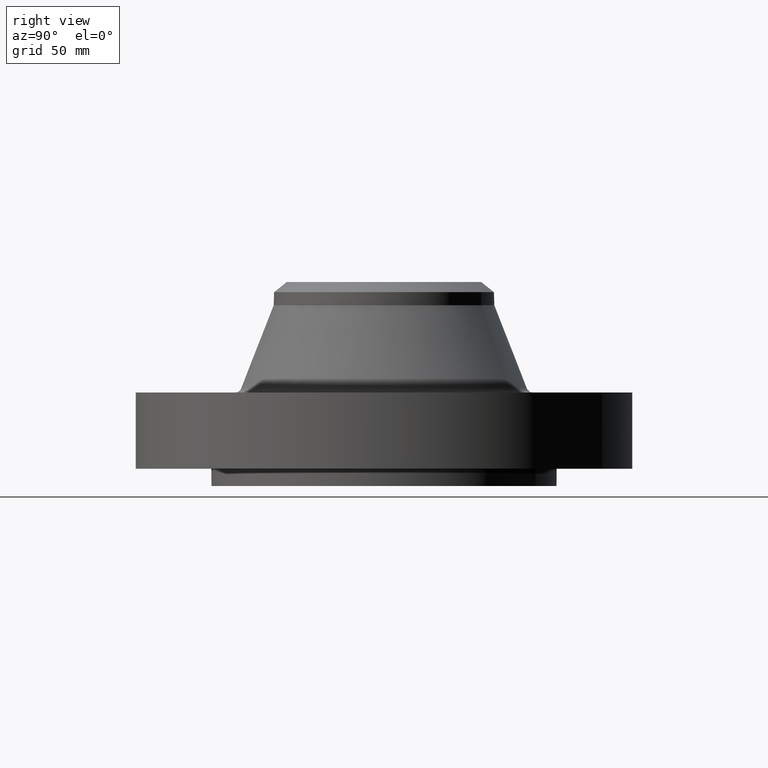
[diagram: clean part render]
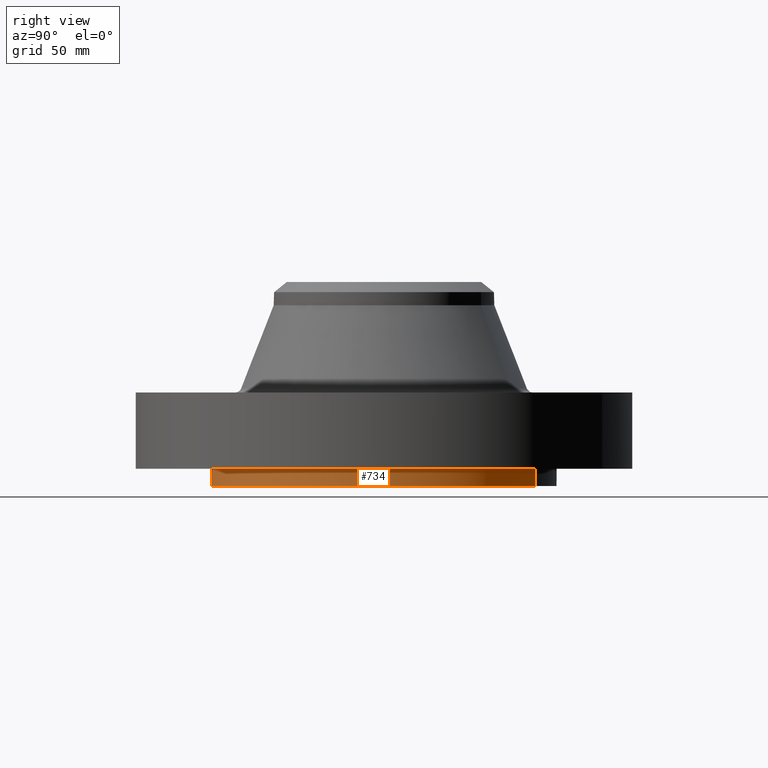
[diagram: same view with one face highlighted and labeled with its STEP entity id]
A machine part, right view. The second image highlights one B-rep face of the part: STEP entity #734.
In plain terms, the highlighted cylindrical surface (partial cylindrical patch) has radius 79.375 mm, axis along (0, 0, -1).
Its self-contained STEP definition (entity closure, byte-faithful):
#184=AXIS2_PLACEMENT_3D('Circle Axis2P3D',#182,#183,$) ;
#210=AXIS2_PLACEMENT_3D('Circle Axis2P3D',#208,#209,$) ;
#307=AXIS2_PLACEMENT_3D('Circle Axis2P3D',#305,#306,$) ;
#333=AXIS2_PLACEMENT_3D('Circle Axis2P3D',#331,#332,$) ;
#359=AXIS2_PLACEMENT_3D('Circle Axis2P3D',#357,#358,$) ;
#703=AXIS2_PLACEMENT_3D('Cylinder Axis2P3D',#700,#701,#702) ;
#707=AXIS2_PLACEMENT_3D('Circle Axis2P3D',#705,#706,$) ;
#167=CARTESIAN_POINT('Vertex',(3.12500000001,0.,2.61916123086E-011)) ;
#182=CARTESIAN_POINT('Axis2P3D Location',(-5.19380444165E-010,-1.61115845075E-010,0.)) ;
#186=CARTESIAN_POINT('Vertex',(2.20970869122,2.20970869122,2.61916123086E-011)) ;
#208=CARTESIAN_POINT('Axis2P3D Location',(1.65718427607E-010,1.1475824665E-010,0.)) ;
#212=CARTESIAN_POINT('Vertex',(1.49820480814,2.74244550592,2.61916123086E-011)) ;
#302=CARTESIAN_POINT('Vertex',(-1.49820480814,-2.74244550592,2.61916123086E-011)) ;
#305=CARTESIAN_POINT('Axis2P3D Location',(-2.03877160124E-010,-6.96518188707E-010,0.)) ;
#309=CARTESIAN_POINT('Vertex',(2.79741234551E-016,-3.12500000001,2.61916123086E-011)) ;
#331=CARTESIAN_POINT('Axis2P3D Location',(1.69489898931E-010,-2.92913130321E-010,0.)) ;
#335=CARTESIAN_POINT('Vertex',(2.20970869122,-2.20970869122,2.61916123086E-011)) ;
#357=CARTESIAN_POINT('Axis2P3D Location',(-5.193793252E-010,1.81115105415E-010,0.)) ;
#700=CARTESIAN_POINT('Axis2P3D Location',(0.,0.,1.53350000001)) ;
#705=CARTESIAN_POINT('Axis2P3D Location',(0.,0.,-0.313000000004)) ;
#709=CARTESIAN_POINT('Vertex',(1.49820480814,2.74244550592,-0.313000000004)) ;
#711=CARTESIAN_POINT('Vertex',(-1.49820480814,-2.74244550592,-0.313000000001)) ;
#714=CARTESIAN_POINT('Line Origine',(1.49820480814,2.74244550592,-0.156499999989)) ;
#719=CARTESIAN_POINT('Line Origine',(-1.49820480814,-2.74244550592,-0.156499999989)) ;
#183=DIRECTION('Axis2P3D Direction',(0.,0.,-0.0393700787402)) ;
#209=DIRECTION('Axis2P3D Direction',(0.,0.,-0.0393700787402)) ;
#306=DIRECTION('Axis2P3D Direction',(0.,0.,-0.0393700787402)) ;
#332=DIRECTION('Axis2P3D Direction',(0.,0.,-0.0393700787402)) ;
#358=DIRECTION('Axis2P3D Direction',(0.,0.,-0.0393700787402)) ;
#701=DIRECTION('Axis2P3D Direction',(0.,0.,-0.0393700787402)) ;
#702=DIRECTION('Axis2P3D XDirection',(0.0188750212048,0.0345504945626,0.)) ;
#706=DIRECTION('Axis2P3D Direction',(0.,0.,-0.0393700787402)) ;
#715=DIRECTION('Vector Direction',(0.,0.,-0.0393700787402)) ;
#720=DIRECTION('Vector Direction',(0.,0.,-0.0393700787402)) ;
#716=VECTOR('Line Direction',#715,0.0393700787402) ;
#721=VECTOR('Line Direction',#720,0.0393700787402) ;
#725=ORIENTED_EDGE('',*,*,#713,.F.) ;
#726=ORIENTED_EDGE('',*,*,#718,.T.) ;
#727=ORIENTED_EDGE('',*,*,#214,.T.) ;
#728=ORIENTED_EDGE('',*,*,#188,.T.) ;
#729=ORIENTED_EDGE('',*,*,#361,.T.) ;
#730=ORIENTED_EDGE('',*,*,#337,.T.) ;
#731=ORIENTED_EDGE('',*,*,#311,.T.) ;
#732=ORIENTED_EDGE('',*,*,#723,.F.) ;
#734=ADVANCED_FACE('PartBody',(#733),#704,.T.) ;
#185=CIRCLE('generated circle',#184,3.12500000052) ;
#211=CIRCLE('generated circle',#210,3.12499999984) ;
#308=CIRCLE('generated circle',#307,3.12499999929) ;
#334=CIRCLE('generated circle',#333,3.1249999997) ;
#360=CIRCLE('generated circle',#359,3.12500000052) ;
#708=CIRCLE('generated circle',#707,3.12500000001) ;
#704=CYLINDRICAL_SURFACE('generated cylinder',#703,3.12500000001) ;
#188=EDGE_CURVE('',#187,#168,#185,.T.) ;
#214=EDGE_CURVE('',#213,#187,#211,.T.) ;
#311=EDGE_CURVE('',#310,#303,#308,.T.) ;
#337=EDGE_CURVE('',#336,#310,#334,.T.) ;
#361=EDGE_CURVE('',#168,#336,#360,.T.) ;
#713=EDGE_CURVE('',#710,#712,#708,.T.) ;
#718=EDGE_CURVE('',#710,#213,#717,.F.) ;
#723=EDGE_CURVE('',#712,#303,#722,.F.) ;
#724=EDGE_LOOP('',(#725,#726,#727,#728,#729,#730,#731,#732)) ;
#733=FACE_OUTER_BOUND('',#724,.T.) ;
#717=LINE('Line',#714,#716) ;
#722=LINE('Line',#719,#721) ;
#168=VERTEX_POINT('',#167) ;
#187=VERTEX_POINT('',#186) ;
#213=VERTEX_POINT('',#212) ;
#303=VERTEX_POINT('',#302) ;
#310=VERTEX_POINT('',#309) ;
#336=VERTEX_POINT('',#335) ;
#710=VERTEX_POINT('',#709) ;
#712=VERTEX_POINT('',#711) ;